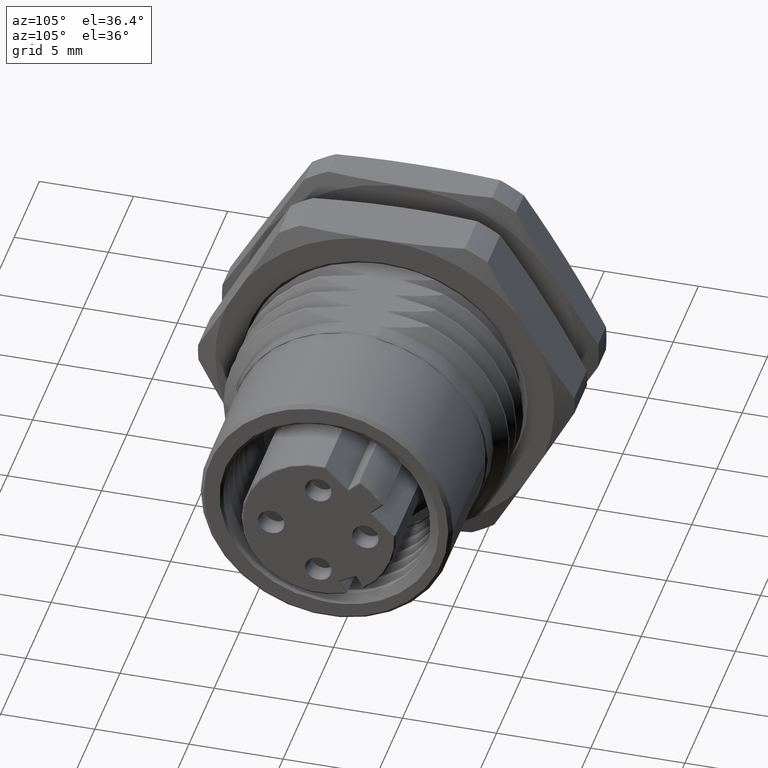
[diagram: clean part render]
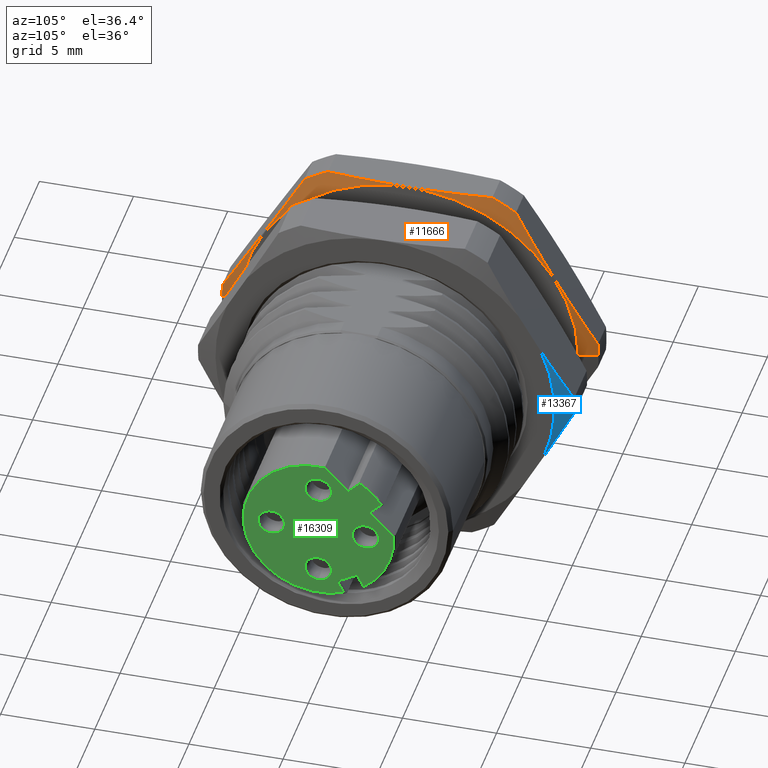
[diagram: same view with three faces highlighted in distinct colors, each labeled with its STEP entity id]
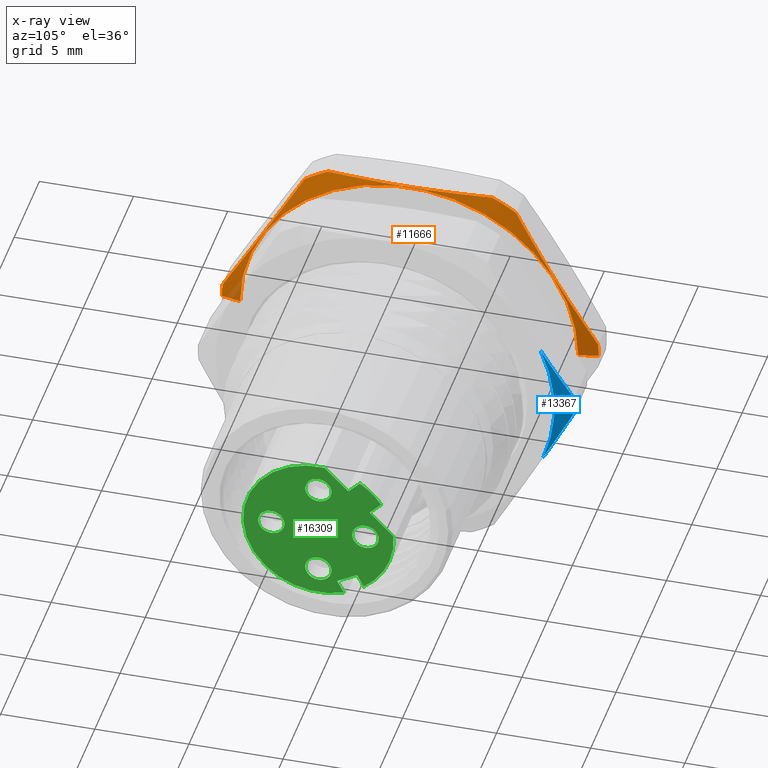
[diagram: x-ray of the same camera — body ghosted, the three highlighted faces saturated]
A machine part, auxiliary view with three faces highlighted in distinct colors.
The next image is the same camera in x-ray (body ghosted, the three faces saturated) — at least one of them is partly hidden behind the body in this view.
Their STEP definitions:

[orange] entity #11666 — the highlighted conical surface has half-angle 78 deg.
#977=CARTESIAN_POINT('',(-8.528072083907E-3,0.E0,0.E0));
#978=DIRECTION('',(1.E0,0.E0,0.E0));
#979=DIRECTION('',(0.E0,-9.973678105830E-1,7.250827823647E-2));
#980=AXIS2_PLACEMENT_3D('',#977,#978,#979);
#982=CARTESIAN_POINT('',(-8.528072083909E-3,-3.926644923555E-1,
2.854656623484E-2));
#983=CARTESIAN_POINT('',(-6.999519853200E-3,-3.844155366655E-1,
4.283417659931E-2));
#984=CARTESIAN_POINT('',(-4.312910828100E-3,-3.679751463795E-1,
7.130976787090E-2));
#985=CARTESIAN_POINT('',(-1.543423712751E-3,-3.436554656327E-1,
1.134326905482E-1));
#986=CARTESIAN_POINT('',(-9.979645067468E-5,-3.191478234796E-1,
1.558811719312E-1));
#987=CARTESIAN_POINT('',(-1.000322583126E-4,-2.945666937716E-1,
1.984569374929E-1));
#988=CARTESIAN_POINT('',(-1.543254592011E-3,-2.700662102010E-1,
2.408930198472E-1));
#989=CARTESIAN_POINT('',(-4.312447303068E-3,-2.457467082467E-1,
2.830156328468E-1));
#990=CARTESIAN_POINT('',(-6.999247932796E-3,-2.293047208584E-1,
3.114939903808E-1));
#991=CARTESIAN_POINT('',(-8.528072083906E-3,-2.210542977279E-1,
3.257841424266E-1));
#993=CARTESIAN_POINT('',(-8.528072083909E-3,-1.716101946276E-1,
3.543307086614E-1));
#994=CARTESIAN_POINT('',(-6.999519853209E-3,-1.551122832477E-1,
3.543307086614E-1));
#995=CARTESIAN_POINT('',(-4.312910828114E-3,-1.222315026759E-1,
3.543307086614E-1));
#996=CARTESIAN_POINT('',(-1.543423712773E-3,-7.359214118236E-2,
3.543307086614E-1));
#997=CARTESIAN_POINT('',(-9.979645068412E-5,-2.457685687618E-2,
3.543307086614E-1));
#998=CARTESIAN_POINT('',(-1.000322583117E-4,2.458540253986E-2,
3.543307086614E-1));
#999=CARTESIAN_POINT('',(-1.543254591991E-3,7.358636968107E-2,
3.543307086614E-1));
#1000=CARTESIAN_POINT('',(-4.312447303041E-3,1.222253735899E-1,
3.543307086614E-1));
#1001=CARTESIAN_POINT('',(-6.999247932789E-3,1.551093483667E-1,
3.543307086614E-1));
#1002=CARTESIAN_POINT('',(-8.528072083906E-3,1.716101946276E-1,
3.543307086614E-1));
#1004=CARTESIAN_POINT('',(-8.528072083909E-3,2.210542977279E-1,
3.257841424266E-1));
#1005=CARTESIAN_POINT('',(-6.999519853205E-3,2.293032534179E-1,
3.114965320622E-1));
#1006=CARTESIAN_POINT('',(-4.312910828125E-3,2.457436437038E-1,
2.830209407907E-1));
#1007=CARTESIAN_POINT('',(-1.543423712767E-3,2.700633244506E-1,
2.408980181135E-1));
#1008=CARTESIAN_POINT('',(-9.979645067951E-5,2.945709666037E-1,
1.984495367306E-1));
#1009=CARTESIAN_POINT('',(-1.000322583139E-4,3.191520963117E-1,
1.558737711689E-1));
#1010=CARTESIAN_POINT('',(-1.543254591998E-3,3.436525798823E-1,
1.134376888146E-1));
#1011=CARTESIAN_POINT('',(-4.312447303054E-3,3.679720818368E-1,
7.131507581473E-2));
#1012=CARTESIAN_POINT('',(-6.999247932793E-3,3.844140692251E-1,
4.283671828071E-2));
#1013=CARTESIAN_POINT('',(-8.528072083905E-3,3.926644923555E-1,
2.854656623484E-2));
#1023=CARTESIAN_POINT('',(-8.528072083907E-3,0.E0,0.E0));
#1024=DIRECTION('',(1.E0,0.E0,0.E0));
#1025=DIRECTION('',(0.E0,-4.358898943541E-1,9.E-1));
#1026=AXIS2_PLACEMENT_3D('',#1023,#1024,#1025);
#1036=CARTESIAN_POINT('',(-8.528072083907E-3,0.E0,0.E0));
#1037=DIRECTION('',(1.E0,0.E0,0.E0));
#1038=DIRECTION('',(0.E0,5.614779162289E-1,8.274917217636E-1));
#1039=AXIS2_PLACEMENT_3D('',#1036,#1037,#1038);
#1049=CARTESIAN_POINT('',(-8.528072083907E-3,0.E0,0.E0));
#1050=DIRECTION('',(1.E0,0.E0,0.E0));
#1051=DIRECTION('',(0.E0,1.E0,0.E0));
#1052=AXIS2_PLACEMENT_3D('',#1049,#1050,#1051);
#1176=DIRECTION('',(2.079116908178E-1,9.781476007338E-1,0.E0));
#1177=VECTOR('',#1176,4.101776119667E-2);
#1178=CARTESIAN_POINT('',(-8.528072083910E-3,-3.937007874016E-1,0.E0));
#1179=LINE('',#1178,#1177);
#1180=DIRECTION('',(-2.079116908178E-1,9.781476007338E-1,-3.275903774313E-14));
#1181=VECTOR('',#1180,4.101776119667E-2);
#1182=CARTESIAN_POINT('',(5.255518242819E-14,3.535793626996E-1,0.E0));
#1183=LINE('',#1182,#1181);
#1192=CARTESIAN_POINT('',(5.447031714567E-14,0.E0,0.E0));
#1193=DIRECTION('',(-1.E0,0.E0,0.E0));
#1194=DIRECTION('',(0.E0,-1.E0,0.E0));
#1195=AXIS2_PLACEMENT_3D('',#1192,#1193,#1194);
#10103=CARTESIAN_POINT('',(5.447031714567E-14,-3.535793626996E-1,0.E0));
#10104=CARTESIAN_POINT('',(5.447031714567E-14,3.535793626996E-1,0.E0));
#10105=VERTEX_POINT('',#10103);
#10106=VERTEX_POINT('',#10104);
#10107=CARTESIAN_POINT('',(-8.528072083907E-3,-3.926644923555E-1,
2.854656623483E-2));
#10108=CARTESIAN_POINT('',(-8.528072083907E-3,-3.937007874016E-1,0.E0));
#10109=VERTEX_POINT('',#10107);
#10110=VERTEX_POINT('',#10108);
#10111=CARTESIAN_POINT('',(-8.528072083907E-3,-1.716101946276E-1,
3.543307086614E-1));
#10112=CARTESIAN_POINT('',(-8.528072083907E-3,-2.210542977279E-1,
3.257841424266E-1));
#10113=VERTEX_POINT('',#10111);
#10114=VERTEX_POINT('',#10112);
#10115=CARTESIAN_POINT('',(-8.528072083907E-3,2.210542977279E-1,
3.257841424266E-1));
#10116=CARTESIAN_POINT('',(-8.528072083907E-3,1.716101946276E-1,
3.543307086614E-1));
#10117=VERTEX_POINT('',#10115);
#10118=VERTEX_POINT('',#10116);
#10119=CARTESIAN_POINT('',(-8.528072083907E-3,3.937007874016E-1,0.E0));
#10120=CARTESIAN_POINT('',(-8.528072083907E-3,3.926644923555E-1,
2.854656623483E-2));
#10121=VERTEX_POINT('',#10119);
#10122=VERTEX_POINT('',#10120);
#11640=CARTESIAN_POINT('',(-4.264036041929E-3,0.E0,0.E0));
#11641=DIRECTION('',(-1.E0,0.E0,0.E0));
#11642=DIRECTION('',(0.E0,1.E0,0.E0));
#11643=AXIS2_PLACEMENT_3D('',#11640,#11641,#11642);
#11644=CONICAL_SURFACE('',#11643,3.736400750506E-1,7.799999999999E1);
#11645=ORIENTED_EDGE('',*,*,#11626,.F.);
#11647=ORIENTED_EDGE('',*,*,#11646,.T.);
#11649=ORIENTED_EDGE('',*,*,#11648,.F.);
#11651=ORIENTED_EDGE('',*,*,#11650,.T.);
#11653=ORIENTED_EDGE('',*,*,#11652,.F.);
#11655=ORIENTED_EDGE('',*,*,#11654,.T.);
#11657=ORIENTED_EDGE('',*,*,#11656,.F.);
#11659=ORIENTED_EDGE('',*,*,#11658,.F.);
#11661=ORIENTED_EDGE('',*,*,#11660,.F.);
#11663=ORIENTED_EDGE('',*,*,#11662,.F.);
#11664=EDGE_LOOP('',(#11645,#11647,#11649,#11651,#11653,#11655,#11657,#11659,
#11661,#11663));
#11665=FACE_OUTER_BOUND('',#11664,.F.);
#11666=ADVANCED_FACE('',(#11665),#11644,.T.);
#981=CIRCLE('',#980,3.937007874016E-1);
#992=B_SPLINE_CURVE_WITH_KNOTS('',3,(#982,#983,#984,#985,#986,#987,#988,#989,
#990,#991),.UNSPECIFIED.,.F.,.F.,(4,1,1,1,1,1,1,4),(0.E0,1.428571428571E-1,
2.857142857143E-1,4.285714285714E-1,5.714285714286E-1,7.142857142857E-1,
8.571428571429E-1,1.E0),.UNSPECIFIED.);
#1003=B_SPLINE_CURVE_WITH_KNOTS('',3,(#993,#994,#995,#996,#997,#998,#999,#1000,
#1001,#1002),.UNSPECIFIED.,.F.,.F.,(4,1,1,1,1,1,1,4),(0.E0,1.428571428571E-1,
2.857142857143E-1,4.285714285714E-1,5.714285714286E-1,7.142857142857E-1,
8.571428571429E-1,1.E0),.UNSPECIFIED.);
#1014=B_SPLINE_CURVE_WITH_KNOTS('',3,(#1004,#1005,#1006,#1007,#1008,#1009,#1010,
#1011,#1012,#1013),.UNSPECIFIED.,.F.,.F.,(4,1,1,1,1,1,1,4),(0.E0,
1.428571428571E-1,2.857142857143E-1,4.285714285714E-1,5.714285714286E-1,
7.142857142857E-1,8.571428571429E-1,1.E0),.UNSPECIFIED.);
#1027=CIRCLE('',#1026,3.937007874016E-1);
#1040=CIRCLE('',#1039,3.937007874016E-1);
#1053=CIRCLE('',#1052,3.937007874016E-1);
#1196=CIRCLE('',#1195,3.535793626996E-1);
#11626=EDGE_CURVE('',#10109,#10110,#981,.T.);
#11646=EDGE_CURVE('',#10109,#10114,#992,.T.);
#11648=EDGE_CURVE('',#10113,#10114,#1027,.T.);
#11650=EDGE_CURVE('',#10113,#10118,#1003,.T.);
#11652=EDGE_CURVE('',#10117,#10118,#1040,.T.);
#11654=EDGE_CURVE('',#10117,#10122,#1014,.T.);
#11656=EDGE_CURVE('',#10121,#10122,#1053,.T.);
#11658=EDGE_CURVE('',#10106,#10121,#1183,.T.);
#11660=EDGE_CURVE('',#10105,#10106,#1196,.T.);
#11662=EDGE_CURVE('',#10110,#10105,#1179,.T.);

[blue] entity #13367 — the highlighted conical surface has half-angle 75 deg.
#2131=CARTESIAN_POINT('',(1.784271971484E-1,0.E0,0.E0));
#2132=DIRECTION('',(-1.E0,0.E0,0.E0));
#2133=DIRECTION('',(0.E0,9.977634136960E-1,6.684437365785E-2));
#2134=AXIS2_PLACEMENT_3D('',#2131,#2132,#2133);
#2136=CARTESIAN_POINT('',(1.889763779528E-1,3.255473012261E-1,
1.398899773567E-1));
#2137=CARTESIAN_POINT('',(1.884718526047E-1,3.330118915407E-1,
1.272879101423E-1));
#2138=CARTESIAN_POINT('',(1.869796899078E-1,3.479449705297E-1,
1.020771943216E-1));
#2139=CARTESIAN_POINT('',(1.834327252330E-1,3.701862857847E-1,
6.452837543544E-2));
#2140=CARTESIAN_POINT('',(1.802213030527E-1,3.852537469315E-1,
3.909078942993E-2));
#2141=CARTESIAN_POINT('',(1.784271971484E-1,3.928202416126E-1,
2.631668254246E-2));
#2154=CARTESIAN_POINT('',(1.889763779528E-1,3.310624988818E-1,
-1.262848879900E-1));
#2155=CARTESIAN_POINT('',(1.884715846731E-1,3.380023552425E-1,
-1.133775831434E-1));
#2156=CARTESIAN_POINT('',(1.869783987992E-1,3.518832240912E-1,
-8.756082319105E-2));
#2157=CARTESIAN_POINT('',(1.834312506733E-1,3.725502471806E-1,
-4.912262599753E-2));
#2158=CARTESIAN_POINT('',(1.802203502627E-1,3.865460662951E-1,
-2.309207226571E-2));
#2159=CARTESIAN_POINT('',(1.784271971484E-1,3.935731958650E-1,
-1.002244966233E-2));
#2333=CARTESIAN_POINT('',(1.889763779528E-1,0.E0,0.E0));
#2334=DIRECTION('',(-1.E0,0.E0,0.E0));
#2335=DIRECTION('',(0.E0,9.187668279050E-1,3.948006027622E-1));
#2336=AXIS2_PLACEMENT_3D('',#2333,#2334,#2335);
#10911=CARTESIAN_POINT('',(1.784271971484E-1,3.928202416126E-1,
2.631668254246E-2));
#10912=VERTEX_POINT('',#10911);
#10913=VERTEX_POINT('',#2136);
#10938=CARTESIAN_POINT('',(1.784271971484E-1,3.935731958650E-1,
-1.002244966233E-2));
#10939=VERTEX_POINT('',#10938);
#10940=CARTESIAN_POINT('',(1.889763779528E-1,3.310624988818E-1,
-1.262848879900E-1));
#10941=VERTEX_POINT('',#10940);
#13354=CARTESIAN_POINT('',(1.837017875506E-1,0.E0,0.E0));
#13355=DIRECTION('',(-1.E0,0.E0,0.E0));
#13356=DIRECTION('',(0.E0,9.997854056576E-1,2.071575810982E-2));
#13357=AXIS2_PLACEMENT_3D('',#13354,#13355,#13356);
#13358=CONICAL_SURFACE('',#13357,3.740157480315E-1,7.500000000006E1);
#13359=ORIENTED_EDGE('',*,*,#13328,.T.);
#13361=ORIENTED_EDGE('',*,*,#13360,.F.);
#13363=ORIENTED_EDGE('',*,*,#13362,.F.);
#13364=ORIENTED_EDGE('',*,*,#13339,.T.);
#13365=EDGE_LOOP('',(#13359,#13361,#13363,#13364));
#13366=FACE_OUTER_BOUND('',#13365,.F.);
#13367=ADVANCED_FACE('',(#13366),#13358,.T.);
#2135=CIRCLE('',#2134,3.937007874016E-1);
#2142=B_SPLINE_CURVE_WITH_KNOTS('',3,(#2136,#2137,#2138,#2139,#2140,#2141),
.UNSPECIFIED.,.F.,.F.,(4,1,1,4),(0.E0,3.333333333333E-1,6.666666666667E-1,1.E0),
.UNSPECIFIED.);
#2160=B_SPLINE_CURVE_WITH_KNOTS('',3,(#2154,#2155,#2156,#2157,#2158,#2159),
.UNSPECIFIED.,.F.,.F.,(4,1,1,4),(0.E0,3.333333333333E-1,6.666666666667E-1,1.E0),
.UNSPECIFIED.);
#2337=CIRCLE('',#2336,3.543307086614E-1);
#13328=EDGE_CURVE('',#10912,#10939,#2135,.T.);
#13339=EDGE_CURVE('',#10913,#10912,#2142,.T.);
#13360=EDGE_CURVE('',#10941,#10939,#2160,.T.);
#13362=EDGE_CURVE('',#10913,#10941,#2337,.T.);

[green] entity #16309 — the highlighted planar face has unit normal (1, 0, 0).
#4376=DIRECTION('',(0.E0,-8.788171126621E-1,-4.771587602594E-1));
#4377=VECTOR('',#4376,4.724409448819E-2);
#4378=CARTESIAN_POINT('',(7.086614173229E-1,8.087394883575E-2,
-9.944564977805E-2));
#4379=LINE('',#4378,#4377);
#4380=DIRECTION('',(1.830797728604E-13,4.771587602597E-1,-8.788171126619E-1));
#4381=VECTOR('',#4380,2.971433018333E-2);
#4382=CARTESIAN_POINT('',(7.086614173229E-1,3.935503012731E-2,
-1.219885833336E-1));
#4383=LINE('',#4382,#4381);
#4384=CARTESIAN_POINT('',(7.086614173229E-1,0.E0,0.E0));
#4385=DIRECTION('',(-1.E0,0.E0,0.E0));
#4386=DIRECTION('',(0.E0,3.399376175552E-1,-9.404479869567E-1));
#4387=AXIS2_PLACEMENT_3D('',#4384,#4385,#4386);
#4389=CARTESIAN_POINT('',(7.086614173229E-1,0.E0,0.E0));
#4390=DIRECTION('',(-1.E0,0.E0,0.E0));
#4391=DIRECTION('',(0.E0,-7.017070795477E-1,-7.124655602291E-1));
#4392=AXIS2_PLACEMENT_3D('',#4389,#4390,#4391);
#4394=CARTESIAN_POINT('',(7.086614173229E-1,0.E0,0.E0));
#4395=DIRECTION('',(-1.E0,0.E0,0.E0));
#4396=DIRECTION('',(0.E0,5.513989667903E-1,8.342416792649E-1));
#4397=AXIS2_PLACEMENT_3D('',#4394,#4395,#4396);
#4399=CARTESIAN_POINT('',(7.086614173229E-1,0.E0,0.E0));
#4400=DIRECTION('',(-1.E0,0.E0,0.E0));
#4401=DIRECTION('',(0.E0,7.017070795477E-1,7.124655602291E-1));
#4402=AXIS2_PLACEMENT_3D('',#4399,#4400,#4401);
#4404=CARTESIAN_POINT('',(7.086614173229E-1,0.E0,0.E0));
#4405=DIRECTION('',(-1.E0,0.E0,0.E0));
#4406=DIRECTION('',(0.E0,9.966586746384E-1,8.167916667106E-2));
#4407=AXIS2_PLACEMENT_3D('',#4404,#4405,#4406);
#4409=DIRECTION('',(-1.718708071749E-13,-4.771587602595E-1,8.788171126620E-1));
#4410=VECTOR('',#4409,2.971433018336E-2);
#4411=CARTESIAN_POINT('',(7.086614173229E-1,9.505240178799E-2,
-1.255591116345E-1));
#4412=LINE('',#4411,#4410);
#4413=CARTESIAN_POINT('',(7.086614173229E-1,0.E0,9.842519685037E-2));
#4414=DIRECTION('',(1.E0,0.E0,0.E0));
#4415=DIRECTION('',(0.E0,0.E0,1.E0));
#4416=AXIS2_PLACEMENT_3D('',#4413,#4414,#4415);
#4418=CARTESIAN_POINT('',(7.086614173229E-1,0.E0,9.842519685037E-2));
#4419=DIRECTION('',(1.E0,0.E0,0.E0));
#4420=DIRECTION('',(0.E0,0.E0,-1.E0));
#4421=AXIS2_PLACEMENT_3D('',#4418,#4419,#4420);
#4423=CARTESIAN_POINT('',(7.086614173229E-1,-9.842519685037E-2,0.E0));
#4424=DIRECTION('',(1.E0,0.E0,0.E0));
#4425=DIRECTION('',(0.E0,-1.E0,0.E0));
#4426=AXIS2_PLACEMENT_3D('',#4423,#4424,#4425);
#4428=CARTESIAN_POINT('',(7.086614173229E-1,-9.842519685037E-2,0.E0));
#4429=DIRECTION('',(1.E0,0.E0,0.E0));
#4430=DIRECTION('',(0.E0,1.E0,0.E0));
#4431=AXIS2_PLACEMENT_3D('',#4428,#4429,#4430);
#4433=CARTESIAN_POINT('',(7.086614173229E-1,0.E0,-9.842519685037E-2));
#4434=DIRECTION('',(1.E0,0.E0,0.E0));
#4435=DIRECTION('',(0.E0,0.E0,-1.E0));
#4436=AXIS2_PLACEMENT_3D('',#4433,#4434,#4435);
#4438=CARTESIAN_POINT('',(7.086614173229E-1,0.E0,-9.842519685037E-2));
#4439=DIRECTION('',(1.E0,0.E0,0.E0));
#4440=DIRECTION('',(0.E0,0.E0,1.E0));
#4441=AXIS2_PLACEMENT_3D('',#4438,#4439,#4440);
#4443=CARTESIAN_POINT('',(7.086614173229E-1,9.842519685037E-2,0.E0));
#4444=DIRECTION('',(1.E0,0.E0,0.E0));
#4445=DIRECTION('',(0.E0,1.E0,0.E0));
#4446=AXIS2_PLACEMENT_3D('',#4443,#4444,#4445);
#4448=CARTESIAN_POINT('',(7.086614173229E-1,9.842519685037E-2,0.E0));
#4449=DIRECTION('',(1.E0,0.E0,0.E0));
#4450=DIRECTION('',(0.E0,-1.E0,0.E0));
#4451=AXIS2_PLACEMENT_3D('',#4448,#4449,#4450);
#4501=DIRECTION('',(-7.255138610055E-14,-7.071067811865E-1,7.071067811866E-1));
#4502=VECTOR('',#4501,7.039184483944E-2);
#4503=CARTESIAN_POINT('',(7.086614173229E-1,1.569541219903E-1,
1.286286089309E-2));
#4504=LINE('',#4503,#4502);
#4585=DIRECTION('',(7.728299823756E-14,-7.071067811867E-1,7.071067811864E-1));
#4586=VECTOR('',#4585,7.039184483942E-2);
#4587=CARTESIAN_POINT('',(7.086614173229E-1,6.263741171927E-2,
1.071795711641E-1));
#4588=LINE('',#4587,#4586);
#4679=DIRECTION('',(-1.589748811190E-13,-7.071067811865E-1,-7.071067811866E-1));
#4680=VECTOR('',#4679,3.421982631704E-2);
#4681=CARTESIAN_POINT('',(7.086614173229E-1,8.683448295907E-2,
1.313766424039E-1));
#4682=LINE('',#4681,#4680);
#4763=DIRECTION('',(1.589748811190E-13,7.071067811863E-1,7.071067811868E-1));
#4764=VECTOR('',#4763,3.421982631703E-2);
#4765=CARTESIAN_POINT('',(7.086614173229E-1,1.071795711641E-1,
6.263741171928E-2));
#4766=LINE('',#4765,#4764);
#9734=CARTESIAN_POINT('',(7.086614173229E-1,8.087394883575E-2,
-9.944564977805E-2));
#9735=CARTESIAN_POINT('',(7.086614173229E-1,3.935503012731E-2,
-1.219885833336E-1));
#9736=VERTEX_POINT('',#9734);
#9737=VERTEX_POINT('',#9735);
#9738=CARTESIAN_POINT('',(7.086614173229E-1,5.353348307953E-2,
-1.481020451900E-1));
#9739=VERTEX_POINT('',#9738);
#9740=CARTESIAN_POINT('',(7.086614173229E-1,-1.105050518973E-1,
-1.121993008235E-1));
#9741=VERTEX_POINT('',#9740);
#9742=CARTESIAN_POINT('',(7.086614173229E-1,1.286286089308E-2,
1.569541219903E-1));
#9743=VERTEX_POINT('',#9742);
#9744=CARTESIAN_POINT('',(7.086614173229E-1,8.683448295908E-2,
1.313766424039E-1));
#9745=CARTESIAN_POINT('',(7.086614173229E-1,1.105050518973E-1,
1.121993008235E-1));
#9746=VERTEX_POINT('',#9744);
#9747=VERTEX_POINT('',#9745);
#9748=CARTESIAN_POINT('',(7.086614173229E-1,1.313766424039E-1,
8.683448295909E-2));
#9749=VERTEX_POINT('',#9748);
#9750=CARTESIAN_POINT('',(7.086614173229E-1,1.569541219903E-1,
1.286286089308E-2));
#9751=CARTESIAN_POINT('',(7.086614173229E-1,9.505240178797E-2,
-1.255591116344E-1));
#9752=VERTEX_POINT('',#9750);
#9753=VERTEX_POINT('',#9751);
#9754=CARTESIAN_POINT('',(7.086614173229E-1,0.E0,1.259842519685E-1));
#9755=CARTESIAN_POINT('',(7.086614173229E-1,0.E0,7.086614173225E-2));
#9756=VERTEX_POINT('',#9754);
#9757=VERTEX_POINT('',#9755);
#9758=CARTESIAN_POINT('',(7.086614173229E-1,-1.259842519685E-1,0.E0));
#9759=CARTESIAN_POINT('',(7.086614173229E-1,-7.086614173225E-2,0.E0));
#9760=VERTEX_POINT('',#9758);
#9761=VERTEX_POINT('',#9759);
#9762=CARTESIAN_POINT('',(7.086614173229E-1,0.E0,-1.259842519685E-1));
#9763=CARTESIAN_POINT('',(7.086614173229E-1,0.E0,-7.086614173225E-2));
#9764=VERTEX_POINT('',#9762);
#9765=VERTEX_POINT('',#9763);
#9766=CARTESIAN_POINT('',(7.086614173229E-1,1.259842519685E-1,0.E0));
#9767=CARTESIAN_POINT('',(7.086614173229E-1,7.086614173225E-2,0.E0));
#9768=VERTEX_POINT('',#9766);
#9769=VERTEX_POINT('',#9767);
#9842=CARTESIAN_POINT('',(7.086614173229E-1,6.263741171927E-2,
1.071795711641E-1));
#9843=VERTEX_POINT('',#9842);
#9847=CARTESIAN_POINT('',(7.086614173229E-1,1.071795711641E-1,
6.263741171928E-2));
#9848=VERTEX_POINT('',#9847);
#16256=CARTESIAN_POINT('',(7.086614173229E-1,9.142211671923E-6,
-5.022246788517E-6));
#16257=DIRECTION('',(1.E0,0.E0,0.E0));
#16258=DIRECTION('',(0.E0,-7.071067811865E-1,-7.071067811865E-1));
#16259=AXIS2_PLACEMENT_3D('',#16256,#16257,#16258);
#16260=PLANE('',#16259);
#16262=ORIENTED_EDGE('',*,*,#16261,.T.);
#16264=ORIENTED_EDGE('',*,*,#16263,.T.);
#16266=ORIENTED_EDGE('',*,*,#16265,.T.);
#16268=ORIENTED_EDGE('',*,*,#16267,.T.);
#16270=ORIENTED_EDGE('',*,*,#16269,.F.);
#16272=ORIENTED_EDGE('',*,*,#16271,.F.);
#16273=ORIENTED_EDGE('',*,*,#16246,.T.);
#16274=ORIENTED_EDGE('',*,*,#16244,.T.);
#16276=ORIENTED_EDGE('',*,*,#16275,.F.);
#16278=ORIENTED_EDGE('',*,*,#16277,.F.);
#16280=ORIENTED_EDGE('',*,*,#16279,.T.);
#16282=ORIENTED_EDGE('',*,*,#16281,.T.);
#16283=EDGE_LOOP('',(#16262,#16264,#16266,#16268,#16270,#16272,#16273,#16274,
#16276,#16278,#16280,#16282));
#16284=FACE_OUTER_BOUND('',#16283,.F.);
#16286=ORIENTED_EDGE('',*,*,#16285,.T.);
#16288=ORIENTED_EDGE('',*,*,#16287,.T.);
#16289=EDGE_LOOP('',(#16286,#16288));
#16290=FACE_BOUND('',#16289,.F.);
#16292=ORIENTED_EDGE('',*,*,#16291,.T.);
#16294=ORIENTED_EDGE('',*,*,#16293,.T.);
#16295=EDGE_LOOP('',(#16292,#16294));
#16296=FACE_BOUND('',#16295,.F.);
#16298=ORIENTED_EDGE('',*,*,#16297,.T.);
#16300=ORIENTED_EDGE('',*,*,#16299,.T.);
#16301=EDGE_LOOP('',(#16298,#16300));
#16302=FACE_BOUND('',#16301,.F.);
#16304=ORIENTED_EDGE('',*,*,#16303,.T.);
#16306=ORIENTED_EDGE('',*,*,#16305,.T.);
#16307=EDGE_LOOP('',(#16304,#16306));
#16308=FACE_BOUND('',#16307,.F.);
#16309=ADVANCED_FACE('',(#16284,#16290,#16296,#16302,#16308),#16260,.T.);
#4388=CIRCLE('',#4387,1.574803149606E-1);
#4393=CIRCLE('',#4392,1.574803149606E-1);
#4398=CIRCLE('',#4397,1.574803149606E-1);
#4403=CIRCLE('',#4402,1.574803149606E-1);
#4408=CIRCLE('',#4407,1.574803149606E-1);
#4417=CIRCLE('',#4416,2.755905511812E-2);
#4422=CIRCLE('',#4421,2.755905511812E-2);
#4427=CIRCLE('',#4426,2.755905511812E-2);
#4432=CIRCLE('',#4431,2.755905511812E-2);
#4437=CIRCLE('',#4436,2.755905511812E-2);
#4442=CIRCLE('',#4441,2.755905511812E-2);
#4447=CIRCLE('',#4446,2.755905511812E-2);
#4452=CIRCLE('',#4451,2.755905511812E-2);
#16244=EDGE_CURVE('',#9747,#9749,#4403,.T.);
#16246=EDGE_CURVE('',#9746,#9747,#4398,.T.);
#16261=EDGE_CURVE('',#9736,#9737,#4379,.T.);
#16263=EDGE_CURVE('',#9737,#9739,#4383,.T.);
#16265=EDGE_CURVE('',#9739,#9741,#4388,.T.);
#16267=EDGE_CURVE('',#9741,#9743,#4393,.T.);
#16269=EDGE_CURVE('',#9843,#9743,#4588,.T.);
#16271=EDGE_CURVE('',#9746,#9843,#4682,.T.);
#16275=EDGE_CURVE('',#9848,#9749,#4766,.T.);
#16277=EDGE_CURVE('',#9752,#9848,#4504,.T.);
#16279=EDGE_CURVE('',#9752,#9753,#4408,.T.);
#16281=EDGE_CURVE('',#9753,#9736,#4412,.T.);
#16285=EDGE_CURVE('',#9756,#9757,#4417,.T.);
#16287=EDGE_CURVE('',#9757,#9756,#4422,.T.);
#16291=EDGE_CURVE('',#9760,#9761,#4427,.T.);
#16293=EDGE_CURVE('',#9761,#9760,#4432,.T.);
#16297=EDGE_CURVE('',#9764,#9765,#4437,.T.);
#16299=EDGE_CURVE('',#9765,#9764,#4442,.T.);
#16303=EDGE_CURVE('',#9768,#9769,#4447,.T.);
#16305=EDGE_CURVE('',#9769,#9768,#4452,.T.);